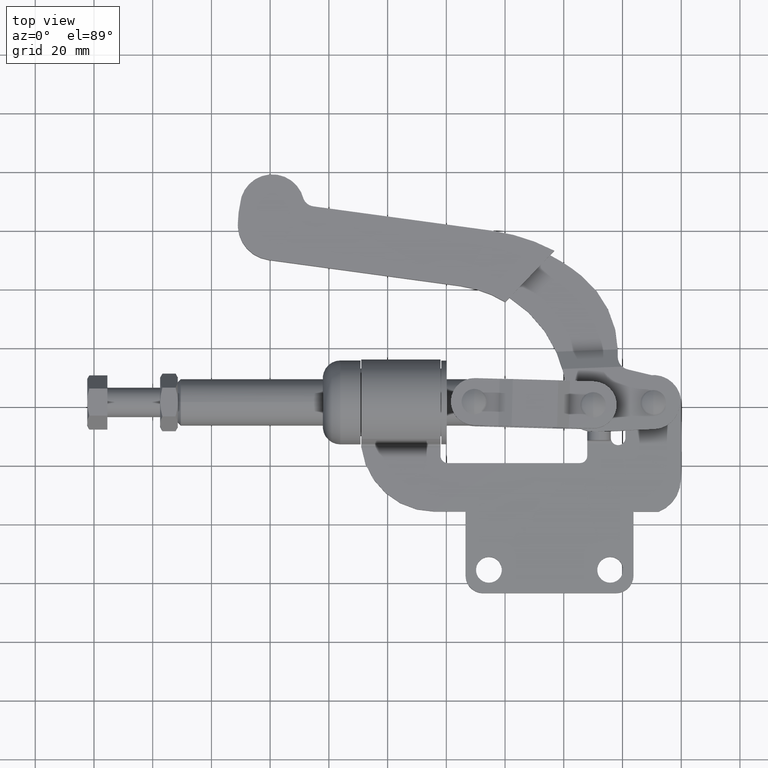
[diagram: clean part render]
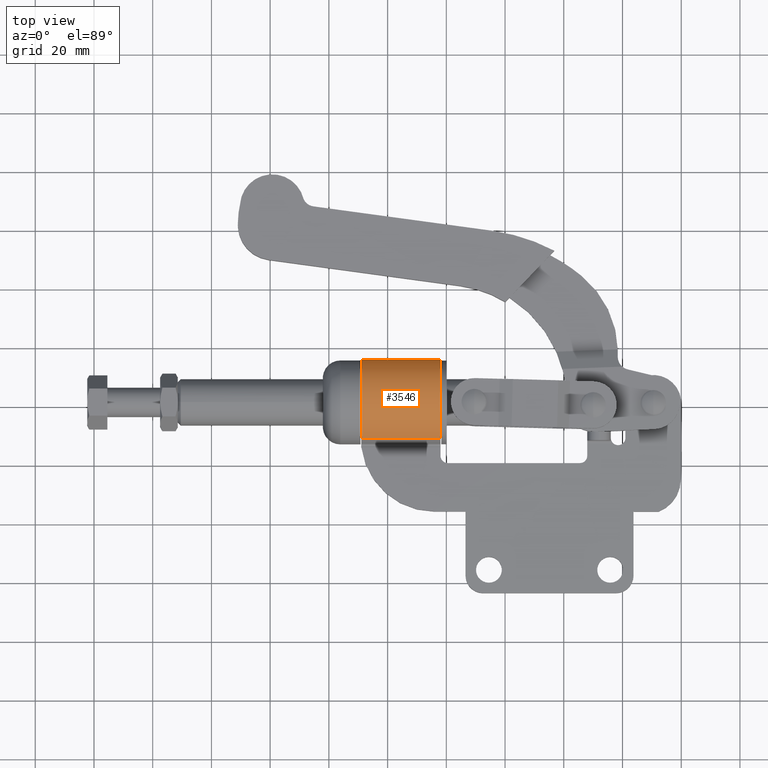
[diagram: same view with one face highlighted and labeled with its STEP entity id]
A machine part, top view. The second image highlights one B-rep face of the part: STEP entity #3546.
In plain terms, the highlighted cylindrical surface (partial cylindrical patch) has radius 14.6769 mm, axis along (1, -0, 0).
Its self-contained STEP definition (entity closure, byte-faithful):
#93 = ORIENTED_EDGE ( 'NONE', *, *, #186, .T. ) ;
#177 = DIRECTION ( 'NONE',  ( 0.0000000000000000000, -2.836668376714297200E-015, -1.000000000000000000 ) ) ;
#186 = EDGE_CURVE ( 'NONE', #5450, #2643, #7731, .T. ) ;
#380 = FACE_OUTER_BOUND ( 'NONE', #5014, .T. ) ;
#416 = EDGE_CURVE ( 'NONE', #2643, #3150, #785, .T. ) ;
#590 = AXIS2_PLACEMENT_3D ( 'NONE', #1141, #2525, #8031 ) ;
#785 = LINE ( 'NONE', #6370, #7812 ) ;
#826 = CARTESIAN_POINT ( 'NONE',  ( -108.9655025418542600, 56.00000000000007800, 1.499999999998903100 ) ) ;
#1141 = CARTESIAN_POINT ( 'NONE',  ( -108.9655025418542600, 41.40000000000006300, -5.483907522439025800E-013 ) ) ;
#1451 = LINE ( 'NONE', #4402, #6460 ) ;
#1557 = ORIENTED_EDGE ( 'NONE', *, *, #416, .T. ) ;
#1753 = ORIENTED_EDGE ( 'NONE', *, *, #5833, .F. ) ;
#2525 = DIRECTION ( 'NONE',  ( 1.000000000000000000, -4.787836793695986600E-016, 1.154872004182648900E-016 ) ) ;
#2565 = CARTESIAN_POINT ( 'NONE',  ( -108.9655025418542600, 41.40000000000006300, -5.483907522439025800E-013 ) ) ;
#2643 = VERTEX_POINT ( 'NONE', #7321 ) ;
#3150 = VERTEX_POINT ( 'NONE', #8399 ) ;
#3546 = ADVANCED_FACE ( 'NONE', ( #380 ), #7192, .T. ) ;
#4248 = DIRECTION ( 'NONE',  ( 0.0000000000000000000, -2.836668376714297200E-015, -1.000000000000000000 ) ) ;
#4402 = CARTESIAN_POINT ( 'NONE',  ( -108.9655025418542600, 56.00000000000007800, 1.499999999998903100 ) ) ;
#4653 = CARTESIAN_POINT ( 'NONE',  ( -82.00000000000477500, 56.00000000000006400, 1.499999999998906000 ) ) ;
#5014 = EDGE_LOOP ( 'NONE', ( #1753, #7577, #93, #1557 ) ) ;
#5067 = DIRECTION ( 'NONE',  ( 1.000000000000000000, -4.787836793695986600E-016, 1.154872004182648900E-016 ) ) ;
#5450 = VERTEX_POINT ( 'NONE', #826 ) ;
#5611 = DIRECTION ( 'NONE',  ( 1.000000000000000000, -4.787836793695986600E-016, 1.154872004182648900E-016 ) ) ;
#5833 = EDGE_CURVE ( 'NONE', #7606, #3150, #7971, .T. ) ;
#6370 = CARTESIAN_POINT ( 'NONE',  ( -108.9655025418542800, 28.86842718839019600, 7.640005423251396100 ) ) ;
#6460 = VECTOR ( 'NONE', #5067, 1000.000000000000000 ) ;
#6936 = CARTESIAN_POINT ( 'NONE',  ( -82.00000000000477500, 41.40000000000004800, -5.452765818474728200E-013 ) ) ;
#7192 = CYLINDRICAL_SURFACE ( 'NONE', #8209, 14.67685252361685900 ) ;
#7321 = CARTESIAN_POINT ( 'NONE',  ( -108.9655025418542800, 28.86842718839019600, 7.640005423251396100 ) ) ;
#7577 = ORIENTED_EDGE ( 'NONE', *, *, #7873, .F. ) ;
#7606 = VERTEX_POINT ( 'NONE', #4653 ) ;
#7632 = DIRECTION ( 'NONE',  ( 1.000000000000000000, -4.787836793695986600E-016, 1.154872004182648900E-016 ) ) ;
#7731 = CIRCLE ( 'NONE', #590, 14.67685252361685900 ) ;
#7812 = VECTOR ( 'NONE', #5611, 1000.000000000000000 ) ;
#7873 = EDGE_CURVE ( 'NONE', #5450, #7606, #1451, .T. ) ;
#7892 = AXIS2_PLACEMENT_3D ( 'NONE', #6936, #8301, #177 ) ;
#7971 = CIRCLE ( 'NONE', #7892, 14.67685252361685900 ) ;
#8031 = DIRECTION ( 'NONE',  ( 0.0000000000000000000, -2.836668376714297200E-015, -1.000000000000000000 ) ) ;
#8209 = AXIS2_PLACEMENT_3D ( 'NONE', #2565, #7632, #4248 ) ;
#8301 = DIRECTION ( 'NONE',  ( 1.000000000000000000, -4.787836793695986600E-016, 1.154872004182648900E-016 ) ) ;
#8399 = CARTESIAN_POINT ( 'NONE',  ( -82.00000000000478900, 28.86842718839018600, 7.640005423251399600 ) ) ;